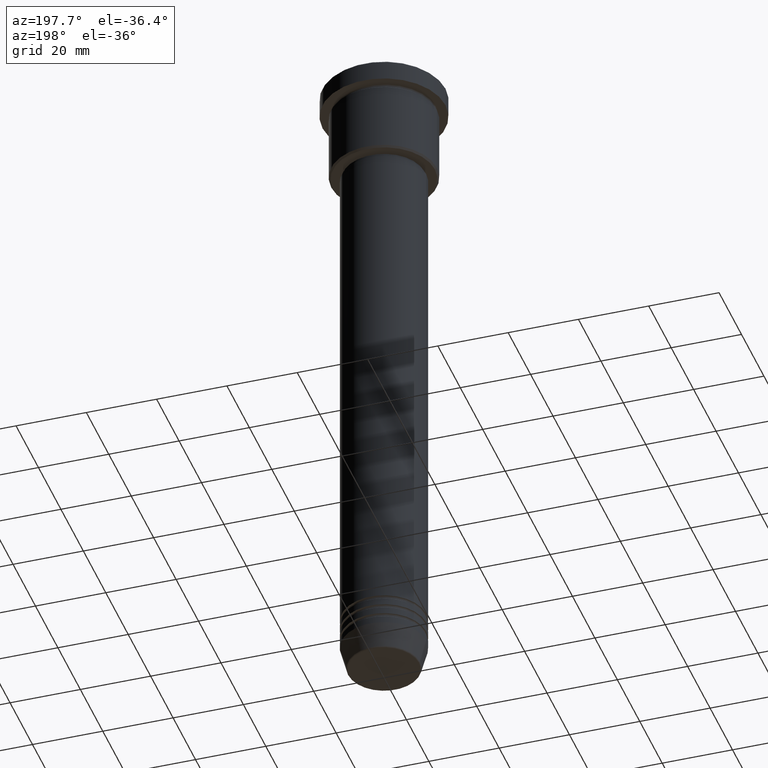
[diagram: clean part render]
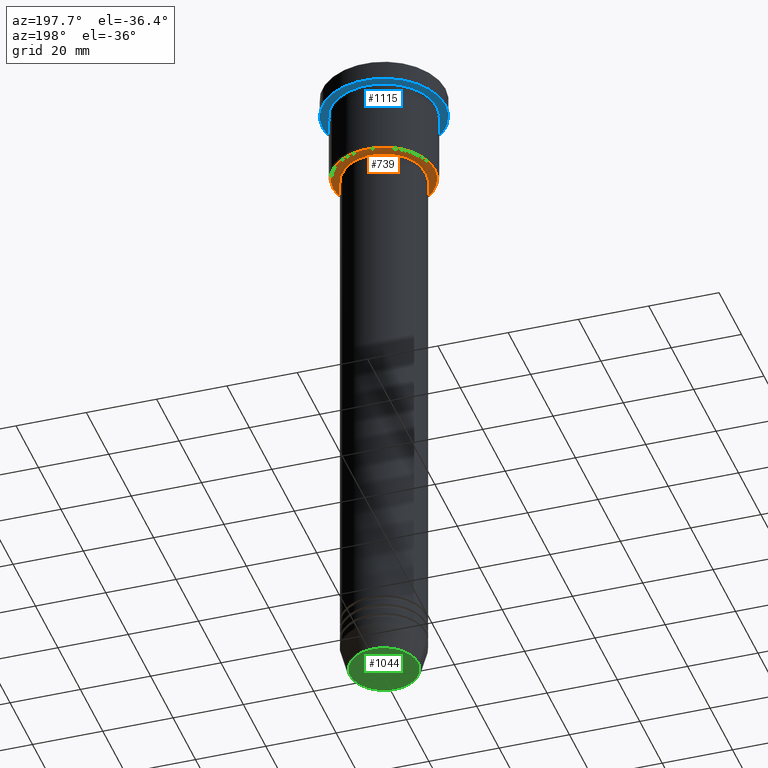
[diagram: same view with three faces highlighted in distinct colors, each labeled with its STEP entity id]
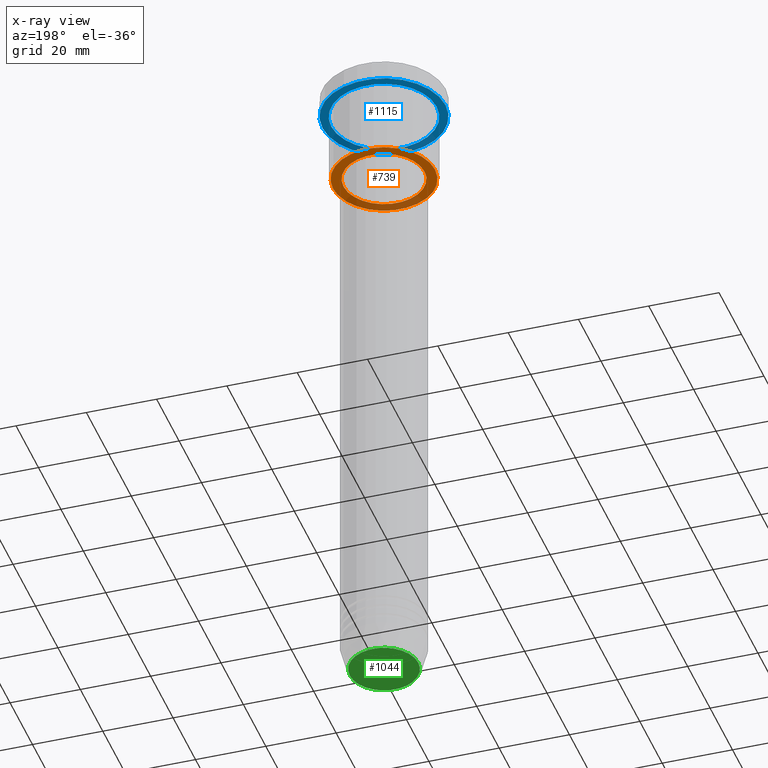
[diagram: x-ray of the same camera — body ghosted, the three highlighted faces saturated]
A machine part, auxiliary view with three faces highlighted in distinct colors.
The next image is the same camera in x-ray (body ghosted, the three faces saturated) — at least one of them is partly hidden behind the body in this view.
Their STEP definitions:

[orange] entity #739 — the highlighted planar face has unit normal (0, 0, -1).
#12 = AXIS2_PLACEMENT_3D ( 'NONE', #866, #894, #285 ) ;
#31 = CIRCLE ( 'NONE', #842, 14.49999999999995737 ) ;
#72 = CARTESIAN_POINT ( 'NONE',  ( 11.50000000000000000, 0.000000000000000000, -27.00000000000000000 ) ) ;
#121 = FACE_BOUND ( 'NONE', #239, .T. ) ;
#124 = CARTESIAN_POINT ( 'NONE',  ( 0.000000000000000000, 0.000000000000000000, -26.99999999999999645 ) ) ;
#136 = CARTESIAN_POINT ( 'NONE',  ( -14.49999999999995737, 1.806354028742343435E-15, -26.99999999999999645 ) ) ;
#142 = EDGE_CURVE ( 'NONE', #1181, #766, #950, .T. ) ;
#150 = EDGE_CURVE ( 'NONE', #1143, #871, #451, .T. ) ;
#171 = DIRECTION ( 'NONE',  ( -1.000000000000000000, 0.000000000000000000, 0.000000000000000000 ) ) ;
#239 = EDGE_LOOP ( 'NONE', ( #484, #417 ) ) ;
#285 = DIRECTION ( 'NONE',  ( 1.000000000000000000, 0.000000000000000000, 0.000000000000000000 ) ) ;
#306 = DIRECTION ( 'NONE',  ( -1.000000000000000000, 0.000000000000000000, 0.000000000000000000 ) ) ;
#311 = CARTESIAN_POINT ( 'NONE',  ( 0.000000000000000000, 15.00000000000000000, -26.99999999999999645 ) ) ;
#353 = AXIS2_PLACEMENT_3D ( 'NONE', #311, #1046, #510 ) ;
#417 = ORIENTED_EDGE ( 'NONE', *, *, #150, .T. ) ;
#451 = CIRCLE ( 'NONE', #12, 11.50000000000000000 ) ;
#458 = CARTESIAN_POINT ( 'NONE',  ( 0.000000000000000000, 0.000000000000000000, -26.99999999999999645 ) ) ;
#462 = EDGE_CURVE ( 'NONE', #766, #1181, #31, .T. ) ;
#484 = ORIENTED_EDGE ( 'NONE', *, *, #883, .T. ) ;
#510 = DIRECTION ( 'NONE',  ( -1.000000000000000000, 0.000000000000000000, -0.000000000000000000 ) ) ;
#562 = ORIENTED_EDGE ( 'NONE', *, *, #462, .T. ) ;
#571 = EDGE_LOOP ( 'NONE', ( #744, #562 ) ) ;
#594 = FACE_OUTER_BOUND ( 'NONE', #571, .T. ) ;
#607 = DIRECTION ( 'NONE',  ( 1.000000000000000000, 0.000000000000000000, 0.000000000000000000 ) ) ;
#635 = CIRCLE ( 'NONE', #1146, 11.50000000000000000 ) ;
#714 = DIRECTION ( 'NONE',  ( 0.000000000000000000, 0.000000000000000000, -1.000000000000000000 ) ) ;
#725 = AXIS2_PLACEMENT_3D ( 'NONE', #124, #1038, #306 ) ;
#739 = ADVANCED_FACE ( 'NONE', ( #594, #121 ), #870, .T. ) ;
#744 = ORIENTED_EDGE ( 'NONE', *, *, #142, .T. ) ;
#766 = VERTEX_POINT ( 'NONE', #136 ) ;
#811 = CARTESIAN_POINT ( 'NONE',  ( 0.000000000000000000, 0.000000000000000000, -27.00000000000000000 ) ) ;
#815 = DIRECTION ( 'NONE',  ( -0.000000000000000000, -0.000000000000000000, 1.000000000000000000 ) ) ;
#842 = AXIS2_PLACEMENT_3D ( 'NONE', #458, #714, #171 ) ;
#866 = CARTESIAN_POINT ( 'NONE',  ( 0.000000000000000000, 0.000000000000000000, -27.00000000000000000 ) ) ;
#870 = PLANE ( 'NONE',  #353 ) ;
#871 = VERTEX_POINT ( 'NONE', #72 ) ;
#883 = EDGE_CURVE ( 'NONE', #871, #1143, #635, .T. ) ;
#894 = DIRECTION ( 'NONE',  ( -0.000000000000000000, -0.000000000000000000, 1.000000000000000000 ) ) ;
#950 = CIRCLE ( 'NONE', #725, 14.49999999999995737 ) ;
#957 = CARTESIAN_POINT ( 'NONE',  ( 14.49999999999995737, 0.000000000000000000, -26.99999999999999645 ) ) ;
#1038 = DIRECTION ( 'NONE',  ( 0.000000000000000000, 0.000000000000000000, -1.000000000000000000 ) ) ;
#1046 = DIRECTION ( 'NONE',  ( 0.000000000000000000, 0.000000000000000000, -1.000000000000000000 ) ) ;
#1125 = CARTESIAN_POINT ( 'NONE',  ( -11.50000000000000000, 1.408343819019456176E-15, -27.00000000000000000 ) ) ;
#1143 = VERTEX_POINT ( 'NONE', #1125 ) ;
#1146 = AXIS2_PLACEMENT_3D ( 'NONE', #811, #815, #607 ) ;
#1181 = VERTEX_POINT ( 'NONE', #957 ) ;

[blue] entity #1115 — the highlighted planar face has unit normal (0, 0, -1).
#11 = DIRECTION ( 'NONE',  ( -1.000000000000000000, 0.000000000000000000, 0.000000000000000000 ) ) ;
#57 = EDGE_CURVE ( 'NONE', #862, #938, #225, .T. ) ;
#187 = CARTESIAN_POINT ( 'NONE',  ( 0.000000000000000000, 0.000000000000000000, -5.999999999999995559 ) ) ;
#217 = FACE_OUTER_BOUND ( 'NONE', #680, .T. ) ;
#218 = CARTESIAN_POINT ( 'NONE',  ( 0.000000000000000000, 0.000000000000000000, -5.999999999999995559 ) ) ;
#221 = PLANE ( 'NONE',  #1068 ) ;
#225 = CIRCLE ( 'NONE', #493, 17.50000000000000000 ) ;
#250 = DIRECTION ( 'NONE',  ( -0.000000000000000000, -0.000000000000000000, 1.000000000000000000 ) ) ;
#270 = EDGE_CURVE ( 'NONE', #982, #812, #727, .T. ) ;
#340 = CARTESIAN_POINT ( 'NONE',  ( 17.50000000000000000, 0.000000000000000000, -5.999999999999995559 ) ) ;
#397 = FACE_BOUND ( 'NONE', #482, .T. ) ;
#403 = DIRECTION ( 'NONE',  ( -1.000000000000000000, 0.000000000000000000, -0.000000000000000000 ) ) ;
#408 = DIRECTION ( 'NONE',  ( 0.000000000000000000, 0.000000000000000000, -1.000000000000000000 ) ) ;
#482 = EDGE_LOOP ( 'NONE', ( #906, #660 ) ) ;
#493 = AXIS2_PLACEMENT_3D ( 'NONE', #718, #250, #1001 ) ;
#508 = DIRECTION ( 'NONE',  ( -0.000000000000000000, -0.000000000000000000, 1.000000000000000000 ) ) ;
#603 = DIRECTION ( 'NONE',  ( -1.000000000000000000, 0.000000000000000000, 0.000000000000000000 ) ) ;
#605 = CARTESIAN_POINT ( 'NONE',  ( -15.00000000000000000, 0.000000000000000000, -5.999999999999994671 ) ) ;
#640 = EDGE_CURVE ( 'NONE', #812, #982, #953, .T. ) ;
#648 = AXIS2_PLACEMENT_3D ( 'NONE', #1061, #508, #603 ) ;
#658 = DIRECTION ( 'NONE',  ( -0.000000000000000000, -0.000000000000000000, 1.000000000000000000 ) ) ;
#660 = ORIENTED_EDGE ( 'NONE', *, *, #270, .T. ) ;
#680 = EDGE_LOOP ( 'NONE', ( #967, #838 ) ) ;
#718 = CARTESIAN_POINT ( 'NONE',  ( 0.000000000000000000, 0.000000000000000000, -5.999999999999995559 ) ) ;
#727 = CIRCLE ( 'NONE', #648, 15.00000000000000000 ) ;
#736 = EDGE_CURVE ( 'NONE', #938, #862, #807, .T. ) ;
#807 = CIRCLE ( 'NONE', #1160, 17.50000000000000000 ) ;
#812 = VERTEX_POINT ( 'NONE', #605 ) ;
#827 = CARTESIAN_POINT ( 'NONE',  ( 15.00000000000000000, 1.836970198721029589E-15, -5.999999999999994671 ) ) ;
#838 = ORIENTED_EDGE ( 'NONE', *, *, #57, .F. ) ;
#858 = CARTESIAN_POINT ( 'NONE',  ( 0.000000000000000000, 17.50000000000000000, -5.999999999999995559 ) ) ;
#862 = VERTEX_POINT ( 'NONE', #989 ) ;
#906 = ORIENTED_EDGE ( 'NONE', *, *, #640, .T. ) ;
#938 = VERTEX_POINT ( 'NONE', #340 ) ;
#948 = DIRECTION ( 'NONE',  ( 1.000000000000000000, 0.000000000000000000, 0.000000000000000000 ) ) ;
#953 = CIRCLE ( 'NONE', #1145, 15.00000000000000000 ) ;
#967 = ORIENTED_EDGE ( 'NONE', *, *, #736, .F. ) ;
#982 = VERTEX_POINT ( 'NONE', #827 ) ;
#989 = CARTESIAN_POINT ( 'NONE',  ( -17.50000000000000000, 2.143131898507868248E-15, -5.999999999999995559 ) ) ;
#1001 = DIRECTION ( 'NONE',  ( 1.000000000000000000, 0.000000000000000000, 0.000000000000000000 ) ) ;
#1061 = CARTESIAN_POINT ( 'NONE',  ( 0.000000000000000000, 0.000000000000000000, -5.999999999999995559 ) ) ;
#1068 = AXIS2_PLACEMENT_3D ( 'NONE', #858, #408, #403 ) ;
#1115 = ADVANCED_FACE ( 'NONE', ( #397, #217 ), #221, .T. ) ;
#1138 = DIRECTION ( 'NONE',  ( -0.000000000000000000, -0.000000000000000000, 1.000000000000000000 ) ) ;
#1145 = AXIS2_PLACEMENT_3D ( 'NONE', #187, #658, #11 ) ;
#1160 = AXIS2_PLACEMENT_3D ( 'NONE', #218, #1138, #948 ) ;

[green] entity #1044 — the highlighted planar face has unit normal (0, -0, 1).
#73 = VERTEX_POINT ( 'NONE', #452 ) ;
#85 = DIRECTION ( 'NONE',  ( 1.000000000000000000, 0.000000000000000000, 0.000000000000000000 ) ) ;
#119 = CARTESIAN_POINT ( 'NONE',  ( 9.740692158992667160, 0.000000000000000000, -192.0000000000000000 ) ) ;
#127 = DIRECTION ( 'NONE',  ( 0.000000000000000000, 0.000000000000000000, -1.000000000000000000 ) ) ;
#132 = AXIS2_PLACEMENT_3D ( 'NONE', #773, #127, #1132 ) ;
#164 = EDGE_CURVE ( 'NONE', #1109, #73, #1104, .T. ) ;
#204 = CARTESIAN_POINT ( 'NONE',  ( 0.000000000000000000, 0.000000000000000000, -192.0000000000000000 ) ) ;
#214 = EDGE_LOOP ( 'NONE', ( #1092, #339 ) ) ;
#283 = DIRECTION ( 'NONE',  ( 0.000000000000000000, 0.000000000000000000, -1.000000000000000000 ) ) ;
#339 = ORIENTED_EDGE ( 'NONE', *, *, #1156, .T. ) ;
#360 = FACE_OUTER_BOUND ( 'NONE', #214, .T. ) ;
#452 = CARTESIAN_POINT ( 'NONE',  ( -9.740692158992667160, 1.222463696683475393E-15, -192.0000000000000000 ) ) ;
#495 = AXIS2_PLACEMENT_3D ( 'NONE', #915, #283, #85 ) ;
#652 = AXIS2_PLACEMENT_3D ( 'NONE', #204, #1011, #737 ) ;
#737 = DIRECTION ( 'NONE',  ( 1.000000000000000000, 0.000000000000000000, 0.000000000000000000 ) ) ;
#773 = CARTESIAN_POINT ( 'NONE',  ( 0.000000000000000000, 0.000000000000000000, -192.0000000000000000 ) ) ;
#915 = CARTESIAN_POINT ( 'NONE',  ( 0.000000000000000000, 0.000000000000000000, -192.0000000000000000 ) ) ;
#920 = PLANE ( 'NONE',  #652 ) ;
#1011 = DIRECTION ( 'NONE',  ( 0.000000000000000000, -0.000000000000000000, 1.000000000000000000 ) ) ;
#1044 = ADVANCED_FACE ( 'NONE', ( #360 ), #920, .F. ) ;
#1092 = ORIENTED_EDGE ( 'NONE', *, *, #164, .T. ) ;
#1104 = CIRCLE ( 'NONE', #495, 9.740692158992667160 ) ;
#1109 = VERTEX_POINT ( 'NONE', #119 ) ;
#1112 = CIRCLE ( 'NONE', #132, 9.740692158992667160 ) ;
#1132 = DIRECTION ( 'NONE',  ( 1.000000000000000000, 0.000000000000000000, 0.000000000000000000 ) ) ;
#1156 = EDGE_CURVE ( 'NONE', #73, #1109, #1112, .T. ) ;